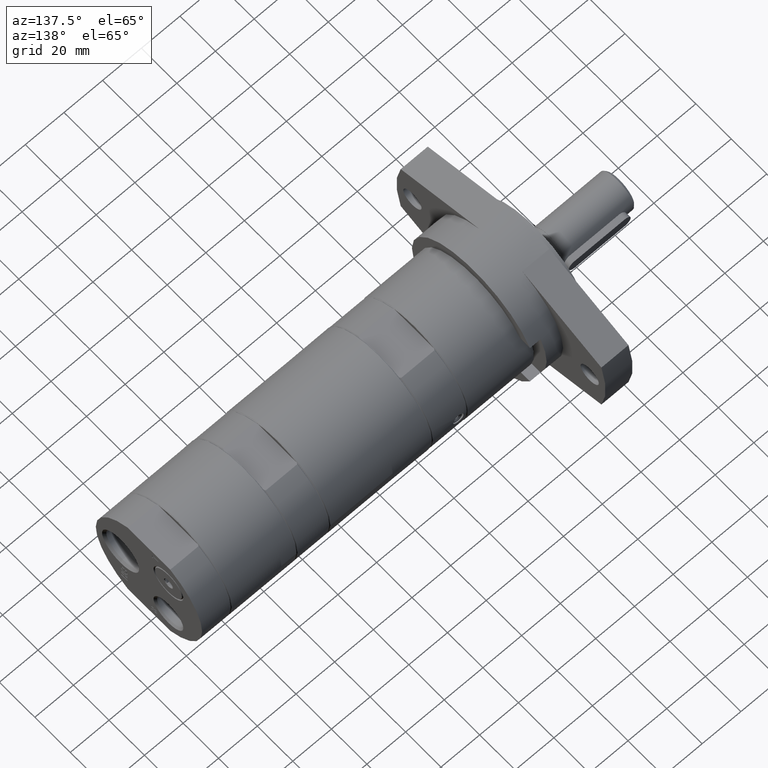
[diagram: clean part render]
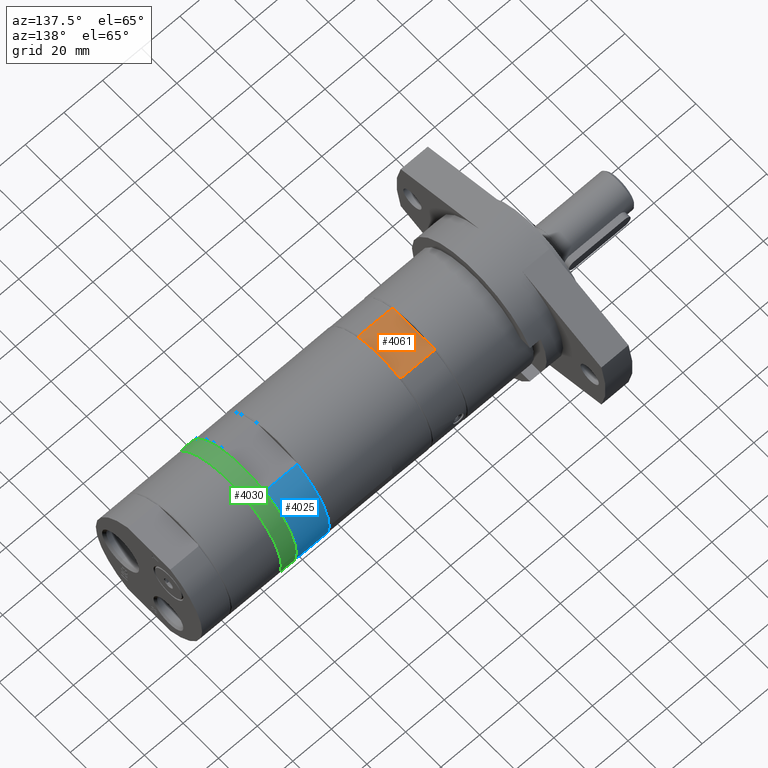
[diagram: same view with three faces highlighted in distinct colors, each labeled with its STEP entity id]
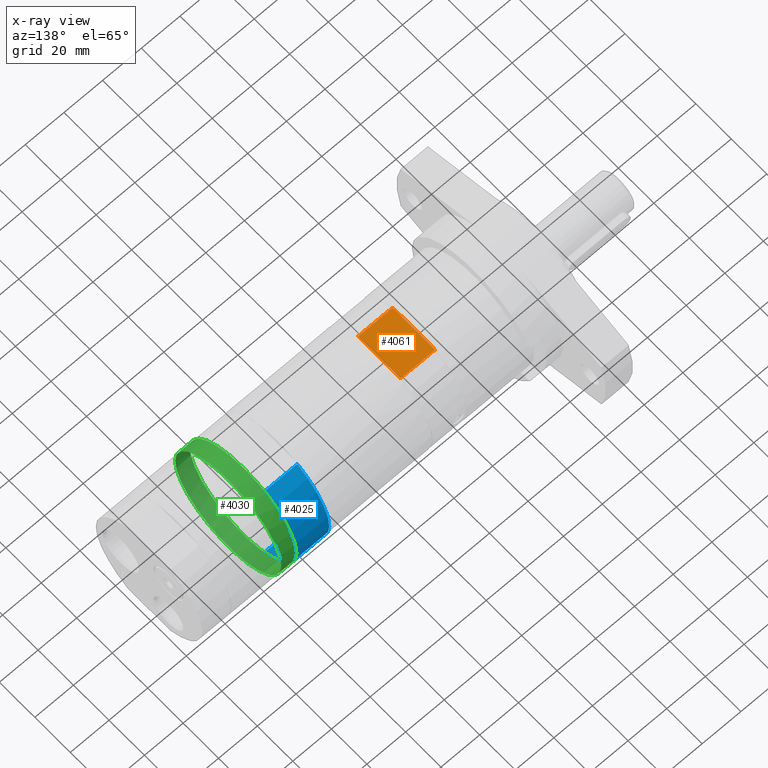
[diagram: x-ray of the same camera — body ghosted, the three highlighted faces saturated]
A machine part, auxiliary view with three faces highlighted in distinct colors.
The next image is the same camera in x-ray (body ghosted, the three faces saturated) — at least one of them is partly hidden behind the body in this view.
Their STEP definitions:

[orange] entity #4061 — the highlighted planar face has unit normal (-0, 0, -1).
#39=(
BOUNDED_CURVE()
B_SPLINE_CURVE(2,(#6775,#6776,#6777),.UNSPECIFIED.,.F.,.F.)
B_SPLINE_CURVE_WITH_KNOTS((3,3),(0.,0.0828004736235466),.UNSPECIFIED.)
CURVE()
GEOMETRIC_REPRESENTATION_ITEM()
RATIONAL_B_SPLINE_CURVE((1.,1.00008356283529,1.))
REPRESENTATION_ITEM('')
);
#41=(
BOUNDED_CURVE()
B_SPLINE_CURVE(2,(#6810,#6811,#6812),.UNSPECIFIED.,.F.,.F.)
B_SPLINE_CURVE_WITH_KNOTS((3,3),(0.,0.0828004736235466),.UNSPECIFIED.)
CURVE()
GEOMETRIC_REPRESENTATION_ITEM()
RATIONAL_B_SPLINE_CURVE((1.,1.0000835628285,1.))
REPRESENTATION_ITEM('')
);
#43=(
BOUNDED_CURVE()
B_SPLINE_CURVE(2,(#6824,#6825,#6826),.UNSPECIFIED.,.F.,.F.)
B_SPLINE_CURVE_WITH_KNOTS((3,3),(0.,0.082800473623548),.UNSPECIFIED.)
CURVE()
GEOMETRIC_REPRESENTATION_ITEM()
RATIONAL_B_SPLINE_CURVE((1.,1.00008356283559,1.))
REPRESENTATION_ITEM('')
);
#45=(
BOUNDED_CURVE()
B_SPLINE_CURVE(2,(#6831,#6832,#6833),.UNSPECIFIED.,.F.,.F.)
B_SPLINE_CURVE_WITH_KNOTS((3,3),(0.,0.082800473623548),.UNSPECIFIED.)
CURVE()
GEOMETRIC_REPRESENTATION_ITEM()
RATIONAL_B_SPLINE_CURVE((1.,1.00008356283375,1.))
REPRESENTATION_ITEM('')
);
#618=LINE('',#6729,#927);
#622=LINE('',#6818,#931);
#623=LINE('',#6835,#932);
#624=LINE('',#6837,#933);
#927=VECTOR('',#5339,10.);
#931=VECTOR('',#5381,10.);
#932=VECTOR('',#5390,10.);
#933=VECTOR('',#5393,10.);
#1185=FACE_OUTER_BOUND('',#1423,.T.);
#1423=EDGE_LOOP('',(#3482,#3483,#3484,#3485,#3486,#3487,#3488,#3489));
#1968=VERTEX_POINT('',#6726);
#1969=VERTEX_POINT('',#6728);
#1973=VERTEX_POINT('',#6774);
#1975=VERTEX_POINT('',#6782);
#1979=VERTEX_POINT('',#6792);
#1983=VERTEX_POINT('',#6801);
#1985=VERTEX_POINT('',#6809);
#1987=VERTEX_POINT('',#6817);
#2482=EDGE_CURVE('',#1968,#1969,#618,.T.);
#2487=EDGE_CURVE('',#1969,#1973,#39,.T.);
#2503=EDGE_CURVE('',#1975,#1985,#41,.T.);
#2506=EDGE_CURVE('',#1985,#1987,#622,.T.);
#2509=EDGE_CURVE('',#1983,#1968,#43,.T.);
#2511=EDGE_CURVE('',#1987,#1979,#45,.T.);
#2512=EDGE_CURVE('',#1973,#1975,#623,.T.);
#2513=EDGE_CURVE('',#1979,#1983,#624,.T.);
#3482=ORIENTED_EDGE('',*,*,#2511,.F.);
#3483=ORIENTED_EDGE('',*,*,#2506,.F.);
#3484=ORIENTED_EDGE('',*,*,#2503,.F.);
#3485=ORIENTED_EDGE('',*,*,#2512,.F.);
#3486=ORIENTED_EDGE('',*,*,#2487,.F.);
#3487=ORIENTED_EDGE('',*,*,#2482,.F.);
#3488=ORIENTED_EDGE('',*,*,#2509,.F.);
#3489=ORIENTED_EDGE('',*,*,#2513,.F.);
#3876=PLANE('',#4428);
#4061=ADVANCED_FACE('',(#1185),#3876,.F.);
#4428=AXIS2_PLACEMENT_3D('',#6836,#5391,#5392);
#5339=DIRECTION('',(1.,6.15522897323642E-16,-9.73181215116916E-17));
#5381=DIRECTION('',(-1.,-6.15522897323642E-16,9.73181215116916E-17));
#5390=DIRECTION('',(6.15522897323642E-16,-1.,-1.55615487576504E-15));
#5391=DIRECTION('center_axis',(-9.73181215116926E-17,1.55615487576504E-15,
-1.));
#5392=DIRECTION('ref_axis',(-1.,-6.15522897323642E-16,9.73181215116916E-17));
#5393=DIRECTION('',(-6.15522897323642E-16,1.,1.55615487576504E-15));
#6726=CARTESIAN_POINT('',(-95.6999999999997,11.9895788082818,27.5));
#6728=CARTESIAN_POINT('',(-78.2999999999997,11.9895788082818,27.5));
#6729=CARTESIAN_POINT('',(-135.5,11.9895788082818,27.5));
#6774=CARTESIAN_POINT('',(-77.9999999999997,11.2178429299042,27.5));
#6775=CARTESIAN_POINT('Ctrl Pts',(-78.2999999999997,11.9895788082818,27.5));
#6776=CARTESIAN_POINT('Ctrl Pts',(-78.1450119240702,11.6017718342225,27.5));
#6777=CARTESIAN_POINT('Ctrl Pts',(-77.9999999999997,11.2178429299042,27.5));
#6782=CARTESIAN_POINT('',(-77.9999999999997,-11.2178429299042,27.5));
#6792=CARTESIAN_POINT('',(-95.9999999999997,-11.2178429299042,27.5));
#6801=CARTESIAN_POINT('',(-95.9999999999997,11.2178429299041,27.5));
#6809=CARTESIAN_POINT('',(-78.2999999999997,-11.9895788082818,27.5));
#6810=CARTESIAN_POINT('Ctrl Pts',(-77.9999999999997,-11.2178429299042,27.5));
#6811=CARTESIAN_POINT('Ctrl Pts',(-78.1450119240702,-11.6017718342225,27.5));
#6812=CARTESIAN_POINT('Ctrl Pts',(-78.2999999999997,-11.9895788082818,27.5));
#6817=CARTESIAN_POINT('',(-95.6999999999997,-11.9895788082818,27.5));
#6818=CARTESIAN_POINT('',(-135.5,-11.9895788082818,27.5));
#6824=CARTESIAN_POINT('Ctrl Pts',(-95.9999999999997,11.2178429299041,27.5));
#6825=CARTESIAN_POINT('Ctrl Pts',(-95.8549880759293,11.6017718342224,27.5));
#6826=CARTESIAN_POINT('Ctrl Pts',(-95.6999999999997,11.9895788082818,27.5));
#6831=CARTESIAN_POINT('Ctrl Pts',(-95.6999999999997,-11.9895788082818,27.5));
#6832=CARTESIAN_POINT('Ctrl Pts',(-95.8549880759292,-11.6017718342227,27.5));
#6833=CARTESIAN_POINT('Ctrl Pts',(-95.9999999999997,-11.2178429299042,27.5));
#6835=CARTESIAN_POINT('',(-77.9999999999997,-23.6289425822905,27.5));
#6836=CARTESIAN_POINT('Origin',(-95.9999999999997,23.6289425822904,27.5));
#6837=CARTESIAN_POINT('',(-95.9999999999997,-23.6289425822905,27.5));

[blue] entity #4025 — the highlighted cylindrical surface (partial cylindrical patch) has radius 30 mm, axis along (1, 0, 0).
#584=LINE('',#6514,#893);
#586=LINE('',#6536,#895);
#893=VECTOR('',#5153,10.);
#895=VECTOR('',#5169,10.);
#996=CYLINDRICAL_SURFACE('',#4348,30.);
#1149=FACE_OUTER_BOUND('',#1384,.T.);
#1384=EDGE_LOOP('',(#3282,#3283,#3284,#3285));
#1573=CIRCLE('',#4344,30.);
#1576=CIRCLE('',#4349,30.);
#1906=VERTEX_POINT('',#6492);
#1912=VERTEX_POINT('',#6510);
#1918=VERTEX_POINT('',#6531);
#1919=VERTEX_POINT('',#6535);
#2392=EDGE_CURVE('',#1906,#1912,#584,.T.);
#2400=EDGE_CURVE('',#1919,#1918,#586,.T.);
#2409=EDGE_CURVE('',#1918,#1906,#1573,.T.);
#2412=EDGE_CURVE('',#1912,#1919,#1576,.T.);
#3282=ORIENTED_EDGE('',*,*,#2392,.T.);
#3283=ORIENTED_EDGE('',*,*,#2412,.T.);
#3284=ORIENTED_EDGE('',*,*,#2400,.T.);
#3285=ORIENTED_EDGE('',*,*,#2409,.T.);
#4025=ADVANCED_FACE('',(#1149),#996,.T.);
#4344=AXIS2_PLACEMENT_3D('',#6556,#5188,#5189);
#4348=AXIS2_PLACEMENT_3D('',#6560,#5196,#5197);
#4349=AXIS2_PLACEMENT_3D('',#6561,#5198,#5199);
#5153=DIRECTION('',(1.,6.15522897323642E-16,6.77724834287753E-32));
#5169=DIRECTION('',(-1.,-6.15522897323642E-16,-6.77724834287753E-32));
#5188=DIRECTION('center_axis',(1.,6.15522897323642E-16,6.77724834287753E-32));
#5189=DIRECTION('ref_axis',(5.04500594861127E-16,-1.,3.41912582050329E-47));
#5196=DIRECTION('center_axis',(1.,6.15522897323642E-16,6.77724834287753E-32));
#5197=DIRECTION('ref_axis',(-7.26545199786158E-16,1.,1.22464679914735E-16));
#5198=DIRECTION('center_axis',(-1.,-6.15522897323642E-16,-6.77724834287753E-32));
#5199=DIRECTION('ref_axis',(5.04500594861127E-16,-1.,3.41912582050329E-47));
#6492=CARTESIAN_POINT('',(-24.7,11.9895788082818,27.5));
#6510=CARTESIAN_POINT('',(-8.29999999999998,11.9895788082818,27.5));
#6514=CARTESIAN_POINT('',(-28.75,11.9895788082818,27.5));
#6531=CARTESIAN_POINT('',(-24.7,11.9895788082818,-27.5));
#6535=CARTESIAN_POINT('',(-8.29999999999998,11.9895788082818,-27.5));
#6536=CARTESIAN_POINT('',(-28.75,11.9895788082818,-27.5));
#6556=CARTESIAN_POINT('Origin',(-24.7,2.91142330434083E-14,3.20563846618107E-30));
#6560=CARTESIAN_POINT('Origin',(-28.75,2.66213653092475E-14,2.93115990829453E-30));
#6561=CARTESIAN_POINT('Origin',(-8.29999999999997,3.9208808559516E-14,4.31710719441299E-30));

[green] entity #4030 — the highlighted cylindrical surface (bore or boss wall) has radius 30 mm, axis along (1, 0, 0).
#591=LINE('',#6579,#900);
#900=VECTOR('',#5224,30.);
#997=CYLINDRICAL_SURFACE('',#4360,30.);
#1154=FACE_OUTER_BOUND('',#1389,.T.);
#1389=EDGE_LOOP('',(#3312,#3313,#3314,#3315,#3316,#3317));
#1561=CIRCLE('',#4322,30.);
#1562=CIRCLE('',#4323,30.);
#1581=CIRCLE('',#4358,30.);
#1582=CIRCLE('',#4359,30.);
#1901=VERTEX_POINT('',#6479);
#1902=VERTEX_POINT('',#6481);
#1925=VERTEX_POINT('',#6573);
#1926=VERTEX_POINT('',#6575);
#2381=EDGE_CURVE('',#1901,#1902,#1561,.T.);
#2382=EDGE_CURVE('',#1902,#1901,#1562,.T.);
#2419=EDGE_CURVE('',#1926,#1925,#1581,.T.);
#2420=EDGE_CURVE('',#1925,#1926,#1582,.T.);
#2421=EDGE_CURVE('',#1902,#1926,#591,.T.);
#3312=ORIENTED_EDGE('',*,*,#2381,.F.);
#3313=ORIENTED_EDGE('',*,*,#2382,.F.);
#3314=ORIENTED_EDGE('',*,*,#2421,.T.);
#3315=ORIENTED_EDGE('',*,*,#2419,.T.);
#3316=ORIENTED_EDGE('',*,*,#2420,.T.);
#3317=ORIENTED_EDGE('',*,*,#2421,.F.);
#4030=ADVANCED_FACE('',(#1154),#997,.T.);
#4322=AXIS2_PLACEMENT_3D('',#6482,#5136,#5137);
#4323=AXIS2_PLACEMENT_3D('',#6483,#5138,#5139);
#4358=AXIS2_PLACEMENT_3D('',#6576,#5218,#5219);
#4359=AXIS2_PLACEMENT_3D('',#6577,#5220,#5221);
#4360=AXIS2_PLACEMENT_3D('',#6578,#5222,#5223);
#5136=DIRECTION('center_axis',(1.,6.15522897323642E-16,6.77724834287753E-32));
#5137=DIRECTION('ref_axis',(5.04500594861127E-16,-1.,3.41912582050329E-47));
#5138=DIRECTION('center_axis',(1.,6.15522897323642E-16,6.77724834287753E-32));
#5139=DIRECTION('ref_axis',(5.04500594861127E-16,-1.,3.41912582050329E-47));
#5218=DIRECTION('center_axis',(1.,6.15522897323642E-16,6.77724834287753E-32));
#5219=DIRECTION('ref_axis',(5.04500594861127E-16,-1.,3.41912582050329E-47));
#5220=DIRECTION('center_axis',(1.,6.15522897323642E-16,6.77724834287753E-32));
#5221=DIRECTION('ref_axis',(5.04500594861127E-16,-1.,3.41912582050329E-47));
#5222=DIRECTION('center_axis',(1.,6.15522897323642E-16,6.77724834287753E-32));
#5223=DIRECTION('ref_axis',(5.04500594861127E-16,-1.,3.41912582050329E-47));
#5224=DIRECTION('',(-1.,-6.15522897323642E-16,-6.77724834287753E-32));
#6479=CARTESIAN_POINT('',(1.77635683940025E-14,-30.,4.87961880687182E-30));
#6481=CARTESIAN_POINT('',(-3.33066907387547E-15,30.,0.));
#6482=CARTESIAN_POINT('Origin',(0.,4.43176486073022E-14,4.87961880687182E-30));
#6483=CARTESIAN_POINT('Origin',(0.,4.43176486073022E-14,4.87961880687182E-30));
#6573=CARTESIAN_POINT('',(-7.69999999999998,3.59041819004681E-14,30.));
#6575=CARTESIAN_POINT('',(-7.7,30.,3.67394039744206E-15));
#6576=CARTESIAN_POINT('Origin',(-7.69999999999999,3.95781222979102E-14,
4.35777068447025E-30));
#6577=CARTESIAN_POINT('Origin',(-7.69999999999999,3.95781222979102E-14,
4.35777068447025E-30));
#6578=CARTESIAN_POINT('Origin',(-28.75,2.66213653092475E-14,2.93115990829453E-30));
#6579=CARTESIAN_POINT('',(-28.75,30.,3.67394039744206E-15));